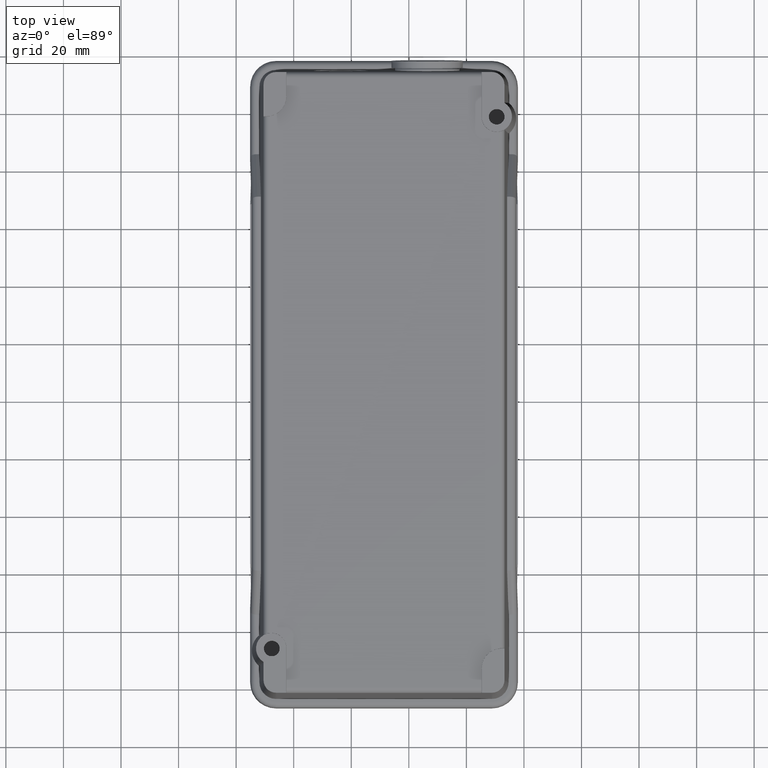
[diagram: clean part render]
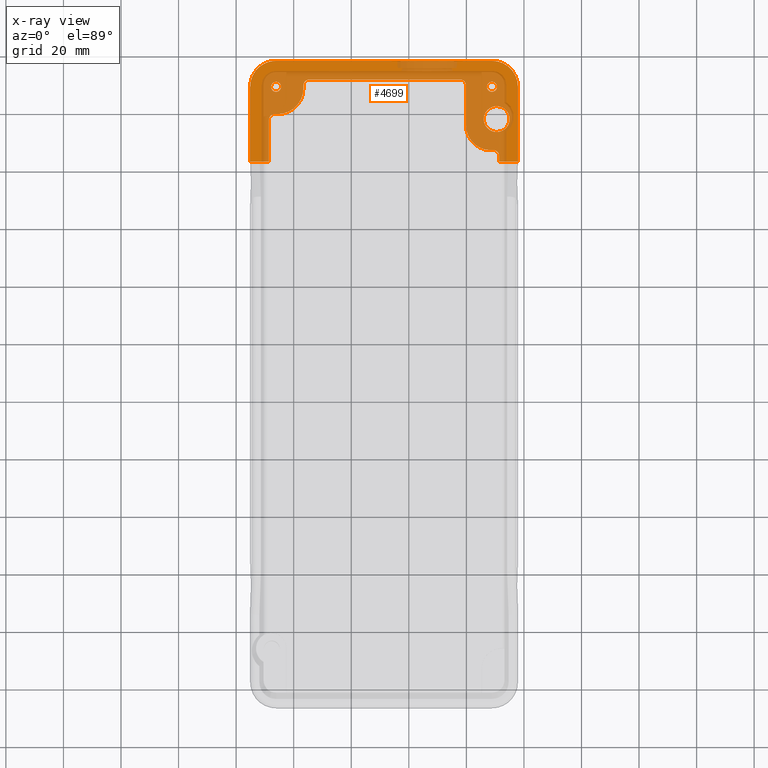
[diagram: x-ray — body ghosted, one internal face saturated and labeled with its STEP entity id]
A machine part, top view, then the same camera in x-ray: the body is ghosted and one INTERNAL B-rep face — a face not visible from any outside direction — is saturated and labeled: STEP entity #4699.
In plain terms, the highlighted planar face has unit normal (0, 0, 1).
Its self-contained STEP definition (entity closure, byte-faithful):
#771=CARTESIAN_POINT('',(-7.864908437115609,189.099587009436480,0.0));
#772=VERTEX_POINT('',#771);
#773=CARTESIAN_POINT('',(-6.114908437115609,189.099587009436480,0.0));
#774=DIRECTION('',(0.0,0.0,1.0));
#775=DIRECTION('',(1.0,0.0,0.0));
#776=AXIS2_PLACEMENT_3D('',#773,#774,#775);
#777=CIRCLE('',#776,1.750000000000000);
#778=EDGE_CURVE('',#772,#772,#777,.T.);
#808=CARTESIAN_POINT('',(67.135091562884398,189.099587009436480,0.0));
#809=VERTEX_POINT('',#808);
#810=CARTESIAN_POINT('',(68.885091562884384,189.099587009436480,0.0));
#811=DIRECTION('',(0.0,0.0,1.0));
#812=DIRECTION('',(1.0,0.0,0.0));
#813=AXIS2_PLACEMENT_3D('',#810,#811,#812);
#814=CIRCLE('',#813,1.750000000000000);
#815=EDGE_CURVE('',#809,#809,#814,.T.);
#1864=CARTESIAN_POINT('',(-6.114908437115667,198.099587009436450,0.0));
#1865=VERTEX_POINT('',#1864);
#1872=CARTESIAN_POINT('',(-15.114908437115645,189.099587009436480,0.0));
#1873=VERTEX_POINT('',#1872);
#1874=CARTESIAN_POINT('',(-6.114908437115695,189.099587009436500,0.0));
#1875=DIRECTION('',(0.0,0.0,1.0));
#1876=DIRECTION('',(0.0,1.0,0.0));
#1877=AXIS2_PLACEMENT_3D('',#1874,#1875,#1876);
#1878=CIRCLE('',#1877,8.999999999999949);
#1879=EDGE_CURVE('',#1865,#1873,#1878,.T.);
#1896=CARTESIAN_POINT('',(68.885091562884341,198.099587009436450,0.0));
#1897=VERTEX_POINT('',#1896);
#1904=CARTESIAN_POINT('',(68.885091562884341,198.099587009436450,0.0));
#1905=DIRECTION('',(-1.0,0.0,0.0));
#1906=VECTOR('',#1905,75.000000000000014);
#1907=LINE('',#1904,#1906);
#1908=EDGE_CURVE('',#1897,#1865,#1907,.T.);
#1920=CARTESIAN_POINT('',(77.885091562884355,189.099587009436480,0.0));
#1921=VERTEX_POINT('',#1920);
#1928=CARTESIAN_POINT('',(68.885091562884369,189.099587009436480,0.0));
#1929=DIRECTION('',(0.0,0.0,1.0));
#1930=DIRECTION('',(1.0,0.0,0.0));
#1931=AXIS2_PLACEMENT_3D('',#1928,#1929,#1930);
#1932=CIRCLE('',#1931,8.999999999999986);
#1933=EDGE_CURVE('',#1921,#1897,#1932,.T.);
#1981=CARTESIAN_POINT('',(77.885091562884355,163.115174709436420,0.0));
#1982=VERTEX_POINT('',#1981);
#1989=CARTESIAN_POINT('',(77.885091562884355,163.115174709436420,0.0));
#1990=DIRECTION('',(0.0,1.0,0.0));
#1991=VECTOR('',#1990,25.984412300000059);
#1992=LINE('',#1989,#1991);
#1993=EDGE_CURVE('',#1982,#1921,#1992,.T.);
#2452=CARTESIAN_POINT('',(-8.614908437115503,177.599587009432920,0.0));
#2453=VERTEX_POINT('',#2452);
#2460=CARTESIAN_POINT('',(-6.614908437115168,179.599587009432920,0.0));
#2461=VERTEX_POINT('',#2460);
#2462=CARTESIAN_POINT('',(-6.614908437115503,177.599587009432920,-5.340173E-013));
#2463=DIRECTION('',(-4.024558E-015,4.024558E-015,1.000000000000000));
#2464=DIRECTION('',(-0.707106781186483,0.707106781186612,-5.691585E-015));
#2465=AXIS2_PLACEMENT_3D('',#2462,#2463,#2464);
#2466=CIRCLE('',#2465,2.000000000000000);
#2467=EDGE_CURVE('',#2453,#2461,#2466,.F.);
#2484=CARTESIAN_POINT('',(-5.614908437114963,179.599587009432750,-1.776357E-014));
#2485=VERTEX_POINT('',#2484);
#2486=CARTESIAN_POINT('',(-5.614908437114963,179.599587009432750,-1.776357E-014));
#2487=DIRECTION('',(-1.0,1.705303E-013,1.776357E-014));
#2488=VECTOR('',#2487,1.000000000000205);
#2489=LINE('',#2486,#2488);
#2490=EDGE_CURVE('',#2485,#2461,#2489,.T.);
#2620=CARTESIAN_POINT('',(-8.614908437115453,163.115174709436390,-8.881784E-015));
#2621=VERTEX_POINT('',#2620);
#2628=CARTESIAN_POINT('',(-8.614908437115503,177.599587009432920,0.0));
#2629=DIRECTION('',(0.0,-1.0,0.0));
#2630=VECTOR('',#2629,14.484412299996535);
#2631=LINE('',#2628,#2630);
#2632=EDGE_CURVE('',#2453,#2621,#2631,.T.);
#2653=CARTESIAN_POINT('',(57.885091562884369,191.599587009441880,0.0));
#2654=VERTEX_POINT('',#2653);
#2661=CARTESIAN_POINT('',(59.885091562884369,189.599587009441880,0.0));
#2662=VERTEX_POINT('',#2661);
#2663=CARTESIAN_POINT('',(57.885091562884369,189.599587009441880,-5.312545E-013));
#2664=DIRECTION('',(4.070916E-015,4.070916E-015,1.000000000000000));
#2665=DIRECTION('',(0.707106781186557,0.707106781186538,-5.757145E-015));
#2666=AXIS2_PLACEMENT_3D('',#2663,#2664,#2665);
#2667=CIRCLE('',#2666,2.000000000000000);
#2668=EDGE_CURVE('',#2654,#2662,#2667,.F.);
#2685=CARTESIAN_POINT('',(59.885091562884369,175.599587009441080,-1.776357E-014));
#2686=VERTEX_POINT('',#2685);
#2687=CARTESIAN_POINT('',(59.885091562884369,175.599587009441080,-1.776357E-014));
#2688=DIRECTION('',(0.0,1.0,0.0));
#2689=VECTOR('',#2688,14.000000000000796);
#2690=LINE('',#2687,#2689);
#2691=EDGE_CURVE('',#2686,#2662,#2690,.T.);
#2726=CARTESIAN_POINT('',(3.385091562885791,189.599587009440310,0.0));
#2727=VERTEX_POINT('',#2726);
#2734=CARTESIAN_POINT('',(5.385091562885789,191.599587009441850,0.0));
#2735=VERTEX_POINT('',#2734);
#2736=CARTESIAN_POINT('',(5.385091562885790,189.599587009441850,-5.292191E-013));
#2737=DIRECTION('',(-4.070916E-015,4.070916E-015,1.000000000000000));
#2738=DIRECTION('',(-0.707106781186819,0.707106781186276,-5.757145E-015));
#2739=AXIS2_PLACEMENT_3D('',#2736,#2737,#2738);
#2740=CIRCLE('',#2739,2.0);
#2741=EDGE_CURVE('',#2727,#2735,#2740,.F.);
#2765=CARTESIAN_POINT('',(57.885091562884369,191.599587009441880,0.0));
#2766=DIRECTION('',(-1.0,0.0,0.0));
#2767=VECTOR('',#2766,52.499999999998579);
#2768=LINE('',#2765,#2767);
#2769=EDGE_CURVE('',#2654,#2735,#2768,.T.);
#2863=CARTESIAN_POINT('',(69.385091562882735,167.099587009440880,0.0));
#2864=VERTEX_POINT('',#2863);
#2871=CARTESIAN_POINT('',(71.385091562882394,165.099587009440880,0.0));
#2872=VERTEX_POINT('',#2871);
#2873=CARTESIAN_POINT('',(69.385091562882380,165.099587009440880,-3.264056E-013));
#2874=DIRECTION('',(2.220446E-015,2.220446E-015,1.0));
#2875=DIRECTION('',(0.707106781186620,0.707106781186475,-3.140185E-015));
#2876=AXIS2_PLACEMENT_3D('',#2873,#2874,#2875);
#2877=CIRCLE('',#2876,2.0);
#2878=EDGE_CURVE('',#2864,#2872,#2877,.F.);
#2934=CARTESIAN_POINT('',(71.385091562882380,163.115174709436450,-1.776357E-014));
#2935=VERTEX_POINT('',#2934);
#2936=CARTESIAN_POINT('',(71.385091562882380,163.115174709436450,-1.776357E-014));
#2937=DIRECTION('',(0.0,1.0,0.0));
#2938=VECTOR('',#2937,1.984412300004436);
#2939=LINE('',#2936,#2938);
#2940=EDGE_CURVE('',#2935,#2872,#2939,.T.);
#3044=CARTESIAN_POINT('',(68.385091562882778,167.099587009441050,-1.776357E-014));
#3045=VERTEX_POINT('',#3044);
#3052=CARTESIAN_POINT('',(69.385091562882735,167.099587009440880,0.0));
#3053=DIRECTION('',(-1.0,1.705303E-013,-1.776357E-014));
#3054=VECTOR('',#3053,0.999999999999957);
#3055=LINE('',#3052,#3054);
#3056=EDGE_CURVE('',#2864,#3045,#3055,.T.);
#3075=CARTESIAN_POINT('',(68.385091562884355,175.599587009441050,0.0));
#3076=DIRECTION('',(0.0,0.0,-1.0));
#3077=DIRECTION('',(1.776357E-013,1.0,0.0));
#3078=AXIS2_PLACEMENT_3D('',#3075,#3076,#3077);
#3079=CIRCLE('',#3078,8.499999999999979);
#3080=EDGE_CURVE('',#3045,#2686,#3079,.T.);
#3099=CARTESIAN_POINT('',(3.385091562886515,188.599587009439490,-1.776357E-014));
#3100=VERTEX_POINT('',#3099);
#3107=CARTESIAN_POINT('',(3.385091562885791,189.599587009440310,0.0));
#3108=DIRECTION('',(7.243095E-013,-1.0,-1.776357E-014));
#3109=VECTOR('',#3108,1.000000000000824);
#3110=LINE('',#3107,#3109);
#3111=EDGE_CURVE('',#2727,#3100,#3110,.T.);
#3130=CARTESIAN_POINT('',(-5.614908437113400,188.599587009432670,0.0));
#3131=DIRECTION('',(0.0,0.0,-1.0));
#3132=DIRECTION('',(-1.0,-7.608728E-013,0.0));
#3133=AXIS2_PLACEMENT_3D('',#3130,#3131,#3132);
#3134=CIRCLE('',#3133,8.999999999999915);
#3135=EDGE_CURVE('',#3100,#2485,#3134,.T.);
#3509=CARTESIAN_POINT('',(-15.114908437115648,163.115174709436420,0.0));
#3510=VERTEX_POINT('',#3509);
#3517=CARTESIAN_POINT('',(-8.614908437115453,163.115174709436390,-8.881784E-015));
#3518=DIRECTION('',(-1.0,0.0,0.0));
#3519=VECTOR('',#3518,6.500000000000195);
#3520=LINE('',#3517,#3519);
#3521=EDGE_CURVE('',#2621,#3510,#3520,.T.);
#3706=CARTESIAN_POINT('',(66.020797520908800,177.880232871740530,0.0));
#3707=VERTEX_POINT('',#3706);
#3708=CARTESIAN_POINT('',(70.520797520908800,177.880232871740530,0.0));
#3709=DIRECTION('',(0.0,0.0,1.0));
#3710=DIRECTION('',(-1.0,0.0,0.0));
#3711=AXIS2_PLACEMENT_3D('',#3708,#3709,#3710);
#3712=CIRCLE('',#3711,4.500000000000000);
#3713=EDGE_CURVE('',#3707,#3707,#3712,.T.);
#4566=CARTESIAN_POINT('',(-15.114908437115645,189.099587009436480,0.0));
#4567=DIRECTION('',(0.0,-1.0,0.0));
#4568=VECTOR('',#4567,25.984412300000059);
#4569=LINE('',#4566,#4568);
#4570=EDGE_CURVE('',#1873,#3510,#4569,.T.);
#4590=CARTESIAN_POINT('',(77.885091562884355,163.115174709436420,0.0));
#4591=DIRECTION('',(-1.0,0.0,0.0));
#4592=VECTOR('',#4591,6.500000000001975);
#4593=LINE('',#4590,#4592);
#4594=EDGE_CURVE('',#1982,#2935,#4593,.T.);
#4663=CARTESIAN_POINT('',(31.385091562884362,85.599587009436462,0.0));
#4664=DIRECTION('',(0.0,0.0,1.0));
#4665=DIRECTION('',(1.0,0.0,0.0));
#4666=AXIS2_PLACEMENT_3D('',#4663,#4664,#4665);
#4667=PLANE('',#4666);
#4668=ORIENTED_EDGE('',*,*,#2632,.T.);
#4669=ORIENTED_EDGE('',*,*,#3521,.T.);
#4670=ORIENTED_EDGE('',*,*,#4570,.F.);
#4671=ORIENTED_EDGE('',*,*,#1879,.F.);
#4672=ORIENTED_EDGE('',*,*,#1908,.F.);
#4673=ORIENTED_EDGE('',*,*,#1933,.F.);
#4674=ORIENTED_EDGE('',*,*,#1993,.F.);
#4675=ORIENTED_EDGE('',*,*,#4594,.T.);
#4676=ORIENTED_EDGE('',*,*,#2940,.T.);
#4677=ORIENTED_EDGE('',*,*,#2878,.F.);
#4678=ORIENTED_EDGE('',*,*,#3056,.T.);
#4679=ORIENTED_EDGE('',*,*,#3080,.T.);
#4680=ORIENTED_EDGE('',*,*,#2691,.T.);
#4681=ORIENTED_EDGE('',*,*,#2668,.F.);
#4682=ORIENTED_EDGE('',*,*,#2769,.T.);
#4683=ORIENTED_EDGE('',*,*,#2741,.F.);
#4684=ORIENTED_EDGE('',*,*,#3111,.T.);
#4685=ORIENTED_EDGE('',*,*,#3135,.T.);
#4686=ORIENTED_EDGE('',*,*,#2490,.T.);
#4687=ORIENTED_EDGE('',*,*,#2467,.F.);
#4688=EDGE_LOOP('',(#4668,#4669,#4670,#4671,#4672,#4673,#4674,#4675,#4676,#4677,#4678,#4679,#4680,#4681,#4682,#4683,#4684,#4685,#4686,#4687));
#4689=FACE_OUTER_BOUND('',#4688,.T.);
#4690=ORIENTED_EDGE('',*,*,#778,.T.);
#4691=EDGE_LOOP('',(#4690));
#4692=FACE_BOUND('',#4691,.T.);
#4693=ORIENTED_EDGE('',*,*,#815,.T.);
#4694=EDGE_LOOP('',(#4693));
#4695=FACE_BOUND('',#4694,.T.);
#4696=ORIENTED_EDGE('',*,*,#3713,.T.);
#4697=EDGE_LOOP('',(#4696));
#4698=FACE_BOUND('',#4697,.T.);
#4699=ADVANCED_FACE('',(#4689,#4692,#4695,#4698),#4667,.F.);